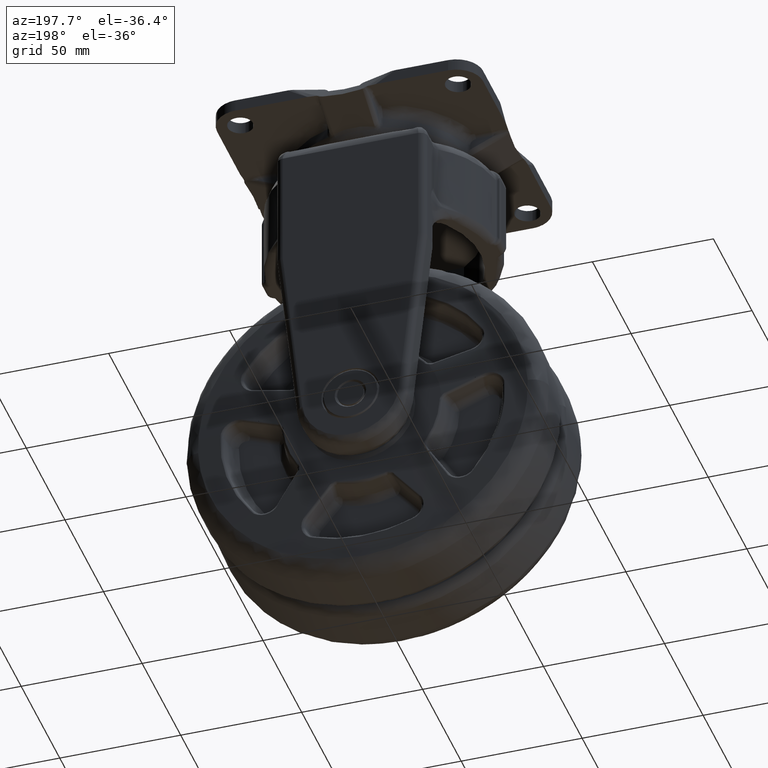
[diagram: clean part render]
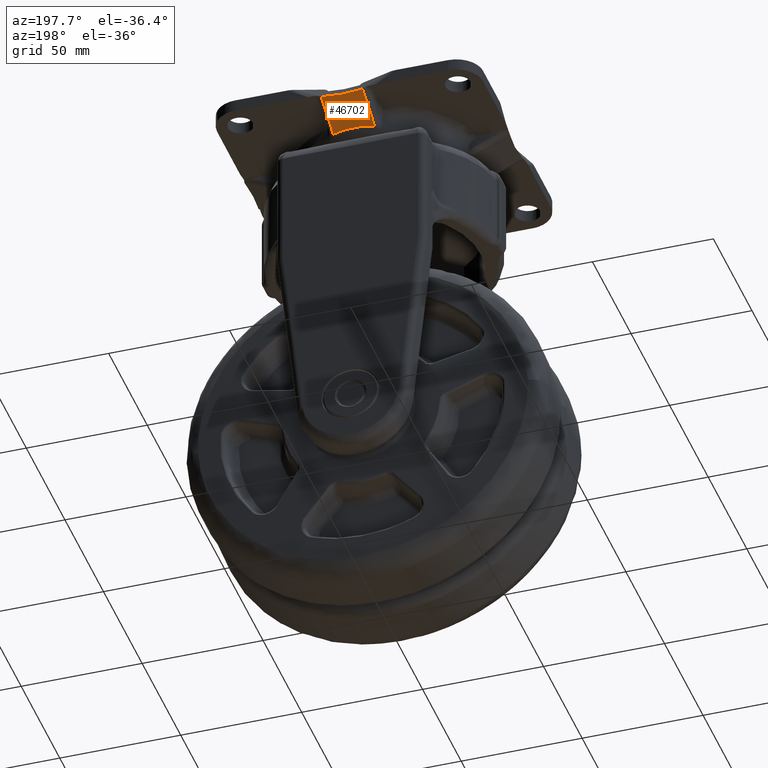
[diagram: same view with one face highlighted and labeled with its STEP entity id]
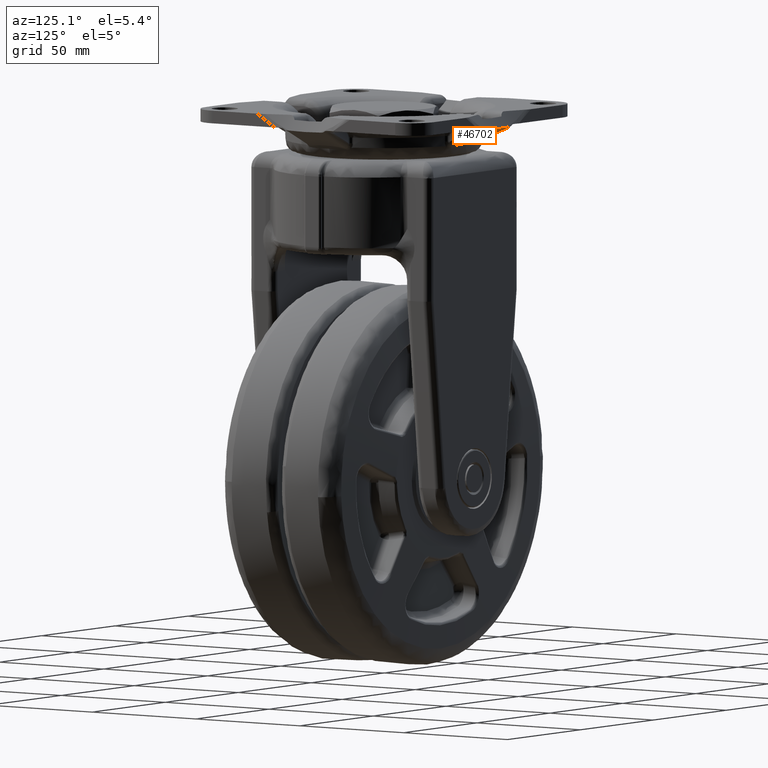
[diagram: same view with one face highlighted and labeled with its STEP entity id]
A machine part, auxiliary view. The second image highlights one B-rep face of the part: STEP entity #46702.
A second angle (auxiliary view) of the same face is appended — the face is thin or edge-on in the first view.
In plain terms, the highlighted face is a freeform B-spline surface patch.
Its self-contained STEP definition (entity closure, byte-faithful):
#38747=CARTESIAN_POINT('',(-8.549999999999839,38.888483962923253,4.949120808083769));
#38748=VERTEX_POINT('',#38747);
#38883=CARTESIAN_POINT('',(8.550000000000001,38.888483962923203,4.949120808083750));
#38884=VERTEX_POINT('',#38883);
#38900=CARTESIAN_POINT('',(8.550000000000001,38.888483962923203,4.949120808083750));
#38901=CARTESIAN_POINT('',(7.849156220738429,39.059413083155107,5.027107219189557));
#38902=CARTESIAN_POINT('',(7.144126612447406,39.207457693305763,5.094652572570789));
#38903=CARTESIAN_POINT('',(5.726139923318302,39.460206317479887,5.209969132350250));
#38904=CARTESIAN_POINT('',(5.013181050627595,39.564900535195690,5.257735869183073));
#38905=CARTESIAN_POINT('',(3.937956892505522,39.690309819274027,5.314953855043822));
#38906=CARTESIAN_POINT('',(3.578582928263575,39.726832141126991,5.331617164389230));
#38907=CARTESIAN_POINT('',(3.038079753076039,39.773730758126113,5.353014658395082));
#38908=CARTESIAN_POINT('',(2.857671565516799,39.788048988510852,5.359547351008119));
#38909=CARTESIAN_POINT('',(2.496374290444714,39.814056302280072,5.371413187915326));
#38910=CARTESIAN_POINT('',(2.315383976858210,39.825749898165760,5.376748391038169));
#38911=CARTESIAN_POINT('',(1.411553781055238,39.877515251464899,5.400366333480897));
#38912=CARTESIAN_POINT('',(0.690678486865798,39.897644525422017,5.409550314723835));
#38913=CARTESIAN_POINT('',(-0.746820760780635,39.896565929653150,5.409058205404285));
#38914=CARTESIAN_POINT('',(-1.463444421715070,39.875355215636922,5.399380817134383));
#38915=CARTESIAN_POINT('',(-2.892465005126873,39.791835859702040,5.361275110989094));
#38916=CARTESIAN_POINT('',(-3.604862057684591,39.729528482596180,5.332847370184539));
#38917=CARTESIAN_POINT('',(-5.025356081642580,39.563102665982953,5.256915591354760));
#38918=CARTESIAN_POINT('',(-5.733453662964572,39.458990156939286,5.209414259103599));
#38919=CARTESIAN_POINT('',(-7.145166731215253,39.207184303629063,5.094527838530798));
#38920=CARTESIAN_POINT('',(-7.848783556478561,39.059503972417403,5.027148687415477));
#38921=CARTESIAN_POINT('',(-8.549999999999839,38.888483962923253,4.949120808083769));
#38922=B_SPLINE_CURVE_WITH_KNOTS('',3,(#38900,#38901,#38902,#38903,#38904,#38905,#38906,#38907,#38908,#38909,#38910,#38911,#38912,#38913,#38914,#38915,#38916,#38917,#38918,#38919,#38920,#38921),.UNSPECIFIED.,.F.,.U.,(4,2,2,2,2,2,2,2,2,2,4),(0.0,0.125000000000000,0.250000000000000,0.312500000000000,0.343750000000000,0.375000000000000,0.500000000000000,0.625000000000000,0.750000000000000,0.875000000000000,1.0),.UNSPECIFIED.);
#38923=EDGE_CURVE('',#38884,#38748,#38922,.T.);
#42483=CARTESIAN_POINT('',(-8.549999999999839,54.704143752601787,12.165015587124540));
#42484=VERTEX_POINT('',#42483);
#42500=CARTESIAN_POINT('',(-8.549999999999839,38.888483962923253,4.949120808083769));
#42501=CARTESIAN_POINT('',(-8.549999999999839,54.704143752601787,12.165015587124540));
#42502=QUASI_UNIFORM_CURVE('',1,(#42500,#42501),.UNSPECIFIED.,.F.,.U.);
#42503=EDGE_CURVE('',#38748,#42484,#42502,.T.);
#42525=CARTESIAN_POINT('',(8.550000000000001,54.704143752601787,12.165015587124561));
#42526=VERTEX_POINT('',#42525);
#42527=CARTESIAN_POINT('',(8.550000000000001,54.704143752601787,12.165015587124561));
#42528=CARTESIAN_POINT('',(8.550000000000001,38.888483962923203,4.949120808083750));
#42529=QUASI_UNIFORM_CURVE('',1,(#42527,#42528),.UNSPECIFIED.,.F.,.U.);
#42530=EDGE_CURVE('',#42526,#38884,#42529,.T.);
#46661=CARTESIAN_POINT('',(-9.404144966856716,38.098491787082573,4.588686877856482));
#46662=CARTESIAN_POINT('',(-9.404144966856716,55.494136352651473,12.525449710897240));
#46663=CARTESIAN_POINT('',(9.404145425514617,38.098491787082573,4.588686877856482));
#46664=CARTESIAN_POINT('',(9.404145425514617,55.494136352651473,12.525449710897240));
#46665=B_SPLINE_SURFACE_WITH_KNOTS('',1,1,((#46661,#46663),(#46662,#46664)),.UNSPECIFIED.,.F.,.F.,.U.,(2,2),(2,2),(0.0,19.120686549377449),(0.0,18.808290392371330),.UNSPECIFIED.);
#46666=ORIENTED_EDGE('',*,*,#42503,.T.);
#46667=CARTESIAN_POINT('',(-7.432215392641500,54.564000251983302,12.101075114967420));
#46668=VERTEX_POINT('',#46667);
#46669=CARTESIAN_POINT('',(-8.549999999999839,54.704143752601787,12.165015587124540));
#46670=CARTESIAN_POINT('',(-8.177116143579319,54.659337075083513,12.144572540506820));
#46671=CARTESIAN_POINT('',(-7.804603401017033,54.612080395658900,12.123011680519401));
#46672=CARTESIAN_POINT('',(-7.432215392641500,54.564000251983302,12.101075114967401));
#46673=QUASI_UNIFORM_CURVE('',3,(#46669,#46670,#46671,#46672),.UNSPECIFIED.,.F.,.U.);
#46674=EDGE_CURVE('',#42484,#46668,#46673,.T.);
#46675=ORIENTED_EDGE('',*,*,#46674,.T.);
#46676=CARTESIAN_POINT('',(7.432215392641700,54.564000251983302,12.101075114967401));
#46677=VERTEX_POINT('',#46676);
#46678=CARTESIAN_POINT('',(-7.432215392641500,54.564000251983302,12.101075114967420));
#46679=CARTESIAN_POINT('',(2.955224E-013,53.604404411442708,11.663259512720760));
#46680=CARTESIAN_POINT('',(7.432215392641685,54.564000251983373,12.101075114967440));
#46688=(BOUNDED_CURVE()B_SPLINE_CURVE(2,(#46678,#46679,#46680),.UNSPECIFIED.,.F.,.U.)CURVE()GEOMETRIC_REPRESENTATION_ITEM()QUASI_UNIFORM_CURVE()RATIONAL_B_SPLINE_CURVE((1.0,0.992332367295044,1.0))REPRESENTATION_ITEM(''));
#46689=EDGE_CURVE('',#46668,#46677,#46688,.T.);
#46690=ORIENTED_EDGE('',*,*,#46689,.T.);
#46691=CARTESIAN_POINT('',(7.432215392641690,54.564000251983302,12.101075114967440));
#46692=CARTESIAN_POINT('',(7.804603401017211,54.612080395658900,12.123011680519440));
#46693=CARTESIAN_POINT('',(8.177116143579520,54.659337075083322,12.144572540506759));
#46694=CARTESIAN_POINT('',(8.550000000000001,54.704143752601787,12.165015587124561));
#46695=QUASI_UNIFORM_CURVE('',3,(#46691,#46692,#46693,#46694),.UNSPECIFIED.,.F.,.U.);
#46696=EDGE_CURVE('',#46677,#42526,#46695,.T.);
#46697=ORIENTED_EDGE('',*,*,#46696,.T.);
#46698=ORIENTED_EDGE('',*,*,#42530,.T.);
#46699=ORIENTED_EDGE('',*,*,#38923,.T.);
#46700=EDGE_LOOP('',(#46666,#46675,#46690,#46697,#46698,#46699));
#46701=FACE_OUTER_BOUND('',#46700,.T.);
#46702=ADVANCED_FACE('',(#46701),#46665,.T.);